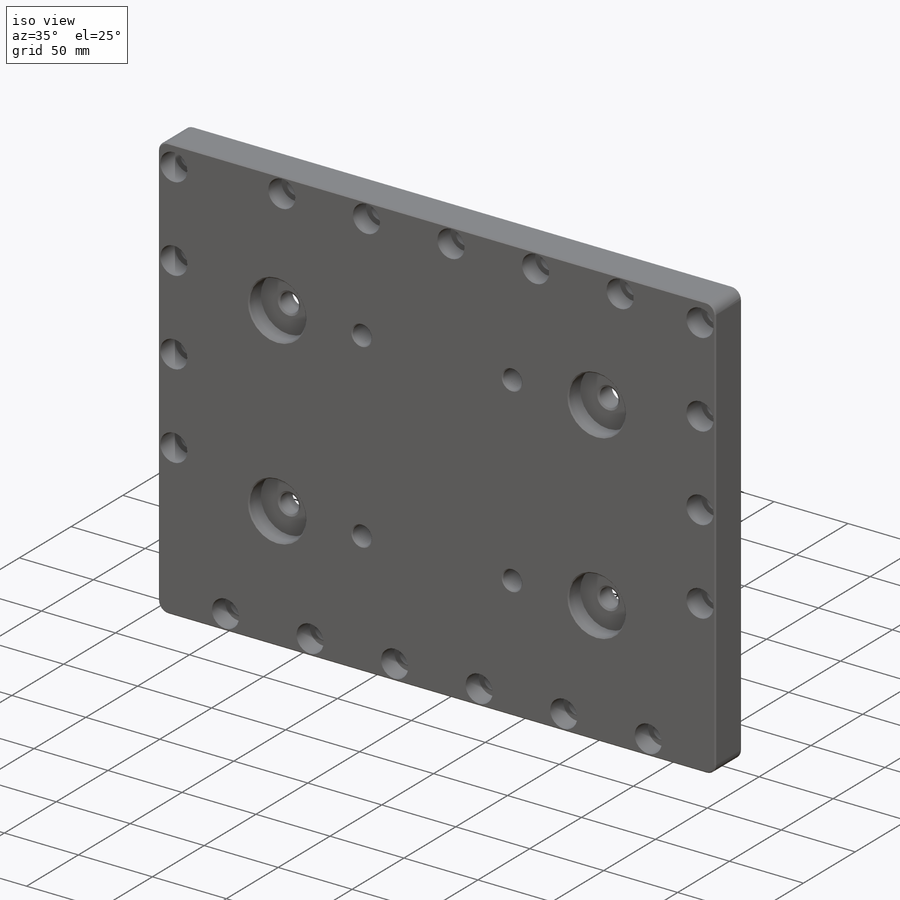
[diagram: iso view]
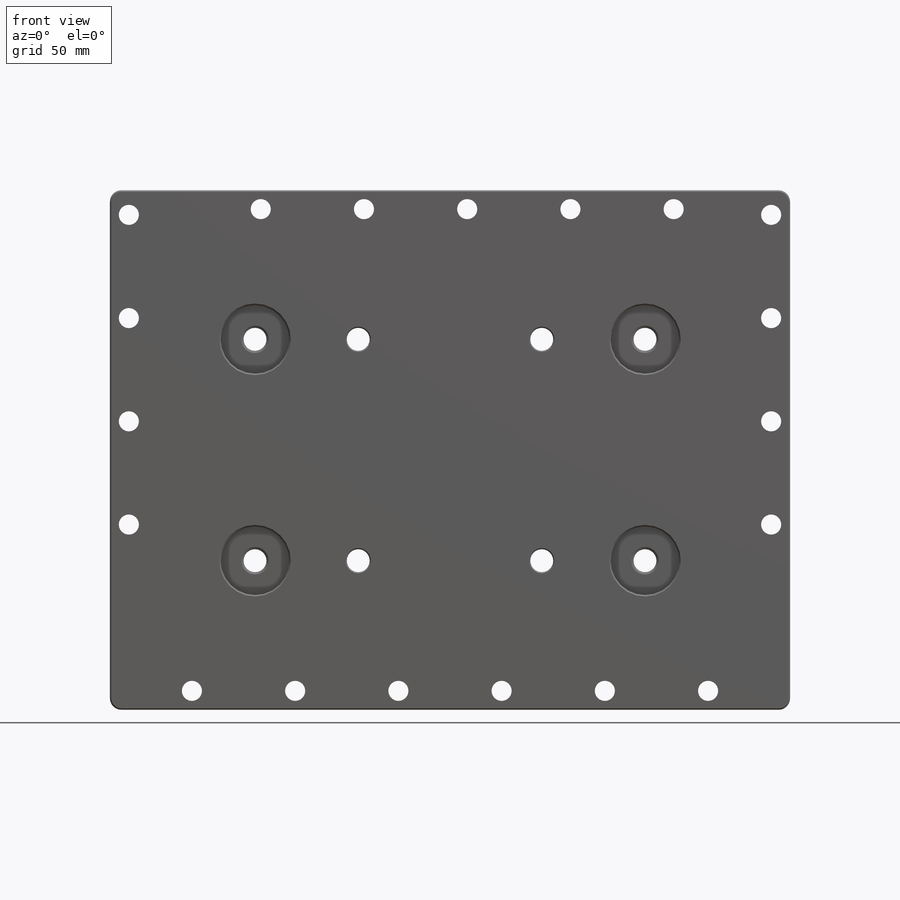
[diagram: front view]
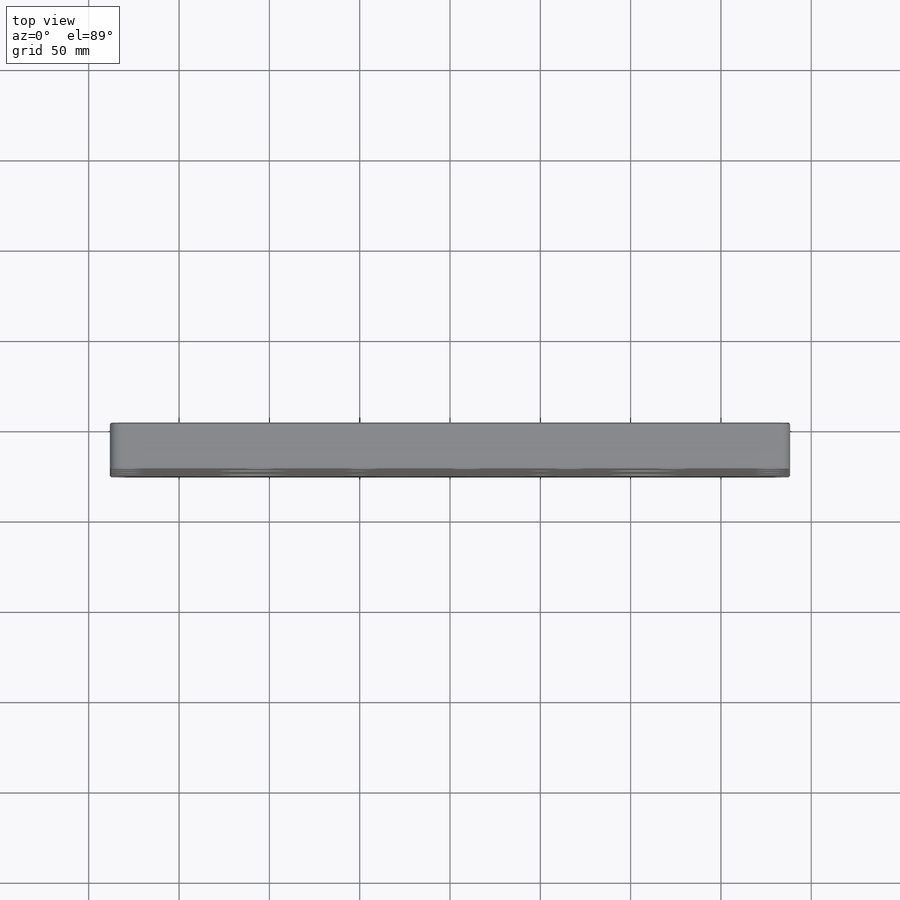
[diagram: top view]
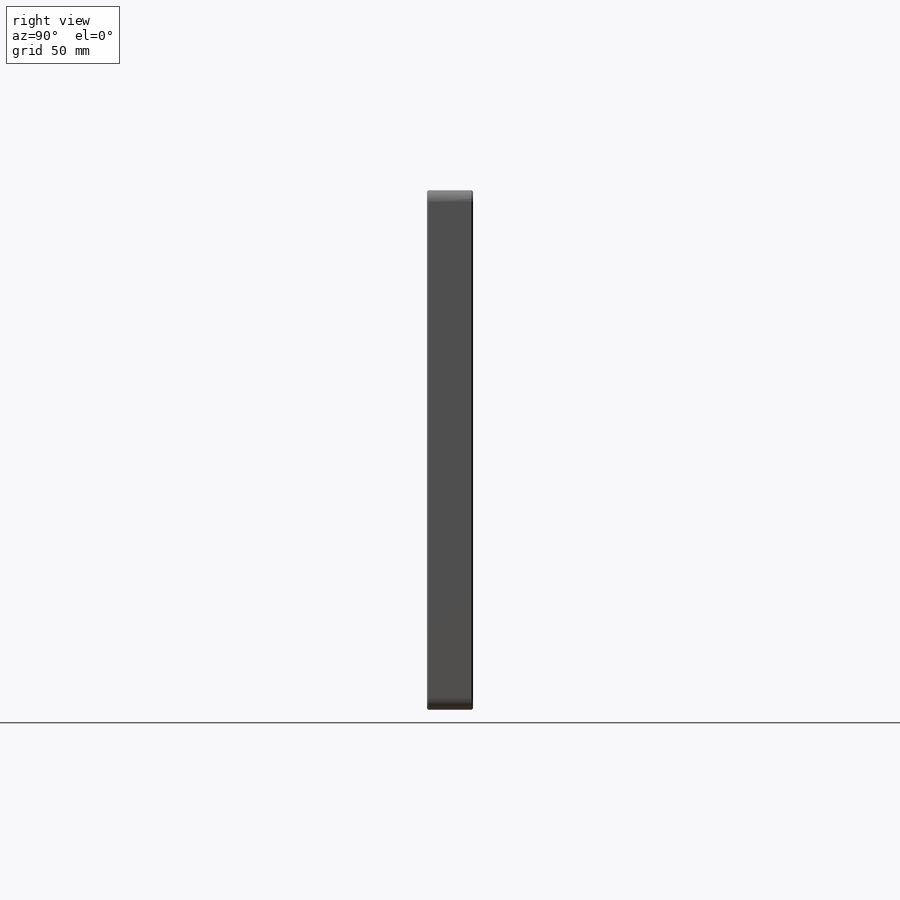
[diagram: right view]
SOLIDWORKS PART (.sldprt)
format: sldprt  version: not decoded by parser v0  size: 528,896 bytes
history: native  units: mm
features: sketch x10, hole x4, chamfer x2, material x1, extrude x1, fillet x1, cut_extrude x1 + 1 further entry (+13 scaffold rows collapsed)
feature tree (34):
  scaffold x13  (default folders/planes/origin — collapsed)
  material  "6061-T6 Al"
  "Origin"  ID=-1
  sketch  "Sketch1"  dims[D1=376.555mm D2=287.655mm]
  extrude  "Extrude1"  Depth=25.4mm
  hole  "CBORE for 3/8 Socket Head Cap Screw3"  Diameter=11.1252mm Depth=25.4mm
  sketch  "Sketch8"  dims[c1.D1=12.7mm c1.D2=57.15mm c1.D3=254.0mm c2.D1=266.7mm c2.D3=83.5025mm]
  sketch  "Sketch7"  dims[hole-wizard template sketch: 41 standard entries collapsed; hole parameters kept: c12.Thru Hole Dia.=11.1252mm c12.Thru Hole Depth=25.4mm c12.C'Bore Dia.=18.2626mm c12.C'Bore Depth=12.7mm c12.Far C'Sink Dia.=12.7mm c12.D6=~2.963249mm c12.Far C'Sink Angle=90.0deg]
  hole  "CBORE for 3/8 Socket Head Cap Screw4"  Diameter=11.1252mm Depth=25.4mm
  sketch  "Sketch19"  dims[D1=355.6mm D2=57.15mm D3=3.175mm]
  sketch  "Sketch18"  dims[hole-wizard template sketch: 41 standard entries collapsed; hole parameters kept: c12.Thru Hole Dia.=11.1252mm c12.Thru Hole Depth=25.4mm c12.C'Bore Dia.=18.2626mm c12.C'Bore Depth=14.224mm c12.Far C'Sink Dia.=12.7mm c12.D6=~2.963249mm c12.Far C'Sink Angle=90.0deg]
  fillet  "Fillet3"  Radius=6.35mm
  chamfer  "Chamfer3"  Distance=0.762mm Angle=45deg
  hole  "CBORE for 1/2 Socket Head Cap Screw1"  Diameter=12.7mm Depth=25.4mm
  sketch  "Sketch24"  dims[c1.D1=101.6mm c1.D2=101.6mm c1.D3=82.55mm c2.D2=205.105mm]
  sketch  "Sketch23"  dims[hole-wizard template sketch: 41 standard entries collapsed; hole parameters kept: c12.Thru Hole Dia.=12.7mm c12.Thru Hole Depth=25.4mm c12.C'Bore Dia.=12.7508mm c12.C'Bore Depth=6.35mm c12.Near C'Sink Dia.=13.97mm c12.D6=~4.399409mm c12.Near C'Sink Angle=90.0deg c12.Far C'Sink Dia.=13.97mm c12.D8=~2.963249mm c12.Far C'Sink Angle=90.0deg]
  sketch  "Sketch29"  dims[D1=38.1mm D2=215.9mm]
  cut_extrude  "Extrude8"  Depth=11.43mm
  hole  "1/2-13 Tapped Hole1"  Diameter=12.7mm Depth=13.97mm
  sketch  "Sketch31"
  sketch  "Sketch30"  dims[hole-wizard template sketch: 47 standard entries collapsed; hole parameters kept: c15.Thru Tap Drill Depth=13.97mm c15.Near C'Sink Dia.=15.24mm c15.D4=~3.666174mm c15.Near C'Sink Angle=120.0deg c15.Far C'Sink Dia.=17.78mm c15.D6=~9.919017mm c15.Far C'Sink Angle=120.0deg]
  chamfer  "Chamfer5"  Distance=0.762mm Angle=45deg
decode coverage: 18 of 19 modeling features carry decoded parameters; 1 rows unclassified (native names shown)
note: ~ marks probable driven/reference dimensions
summary: Diameter pulled from absorbed wizard sketch
note: suppression state not decoded; provenance and decode notes live in map.json
